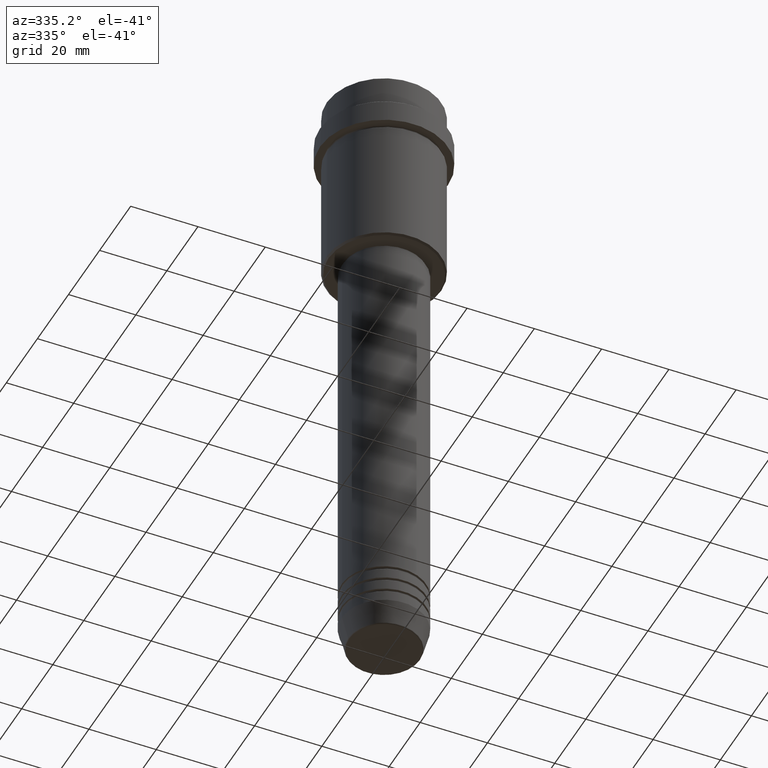
[diagram: clean part render]
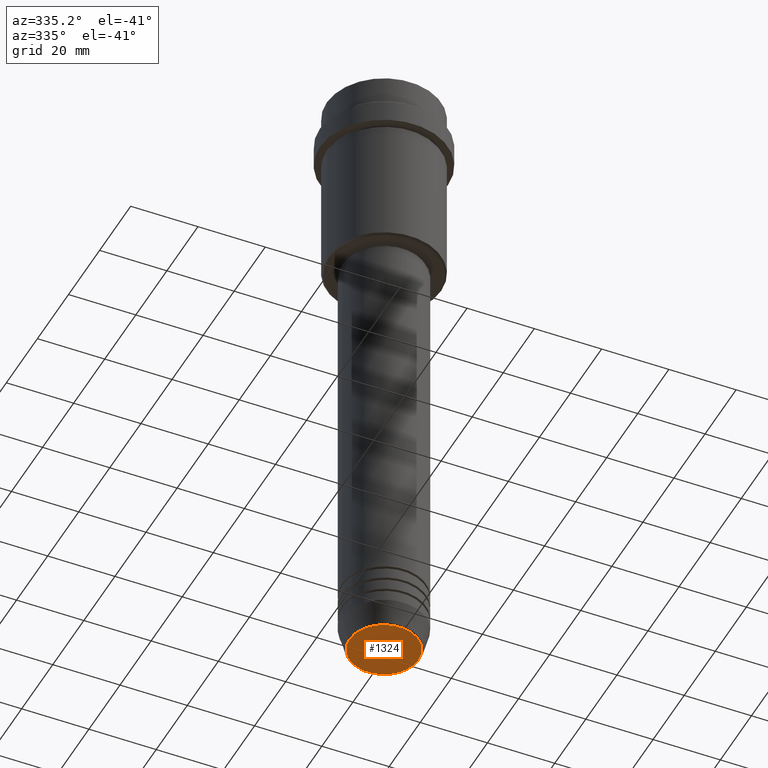
[diagram: same view with one face highlighted and labeled with its STEP entity id]
A machine part, auxiliary view. The second image highlights one B-rep face of the part: STEP entity #1324.
In plain terms, the highlighted planar face has unit normal (0, -0, 1).
Its self-contained STEP definition (entity closure, byte-faithful):
#16 = AXIS2_PLACEMENT_3D ( 'NONE', #725, #601, #126 ) ;
#43 = CARTESIAN_POINT ( 'NONE',  ( -10.24069215899265828, 1.283696036640842178E-15, -190.0000000000000000 ) ) ;
#47 = ORIENTED_EDGE ( 'NONE', *, *, #1244, .T. ) ;
#116 = CARTESIAN_POINT ( 'NONE',  ( 10.24069215899265828, 0.000000000000000000, -190.0000000000000000 ) ) ;
#126 = DIRECTION ( 'NONE',  ( 1.000000000000000000, 0.000000000000000000, 0.000000000000000000 ) ) ;
#194 = FACE_OUTER_BOUND ( 'NONE', #360, .T. ) ;
#197 = CARTESIAN_POINT ( 'NONE',  ( 0.000000000000000000, 0.000000000000000000, -190.0000000000000000 ) ) ;
#237 = EDGE_CURVE ( 'NONE', #334, #1185, #671, .T. ) ;
#287 = CARTESIAN_POINT ( 'NONE',  ( 0.000000000000000000, 0.000000000000000000, -190.0000000000000000 ) ) ;
#334 = VERTEX_POINT ( 'NONE', #116 ) ;
#360 = EDGE_LOOP ( 'NONE', ( #424, #47 ) ) ;
#424 = ORIENTED_EDGE ( 'NONE', *, *, #237, .T. ) ;
#547 = DIRECTION ( 'NONE',  ( 0.000000000000000000, 0.000000000000000000, -1.000000000000000000 ) ) ;
#601 = DIRECTION ( 'NONE',  ( 0.000000000000000000, 0.000000000000000000, -1.000000000000000000 ) ) ;
#671 = CIRCLE ( 'NONE', #784, 10.24069215899265828 ) ;
#725 = CARTESIAN_POINT ( 'NONE',  ( 0.000000000000000000, 0.000000000000000000, -190.0000000000000000 ) ) ;
#745 = AXIS2_PLACEMENT_3D ( 'NONE', #287, #1270, #1152 ) ;
#755 = PLANE ( 'NONE',  #745 ) ;
#784 = AXIS2_PLACEMENT_3D ( 'NONE', #197, #547, #978 ) ;
#900 = CIRCLE ( 'NONE', #16, 10.24069215899265828 ) ;
#978 = DIRECTION ( 'NONE',  ( 1.000000000000000000, 0.000000000000000000, 0.000000000000000000 ) ) ;
#1152 = DIRECTION ( 'NONE',  ( 1.000000000000000000, 0.000000000000000000, 0.000000000000000000 ) ) ;
#1185 = VERTEX_POINT ( 'NONE', #43 ) ;
#1244 = EDGE_CURVE ( 'NONE', #1185, #334, #900, .T. ) ;
#1270 = DIRECTION ( 'NONE',  ( 0.000000000000000000, -0.000000000000000000, 1.000000000000000000 ) ) ;
#1324 = ADVANCED_FACE ( 'NONE', ( #194 ), #755, .F. ) ;